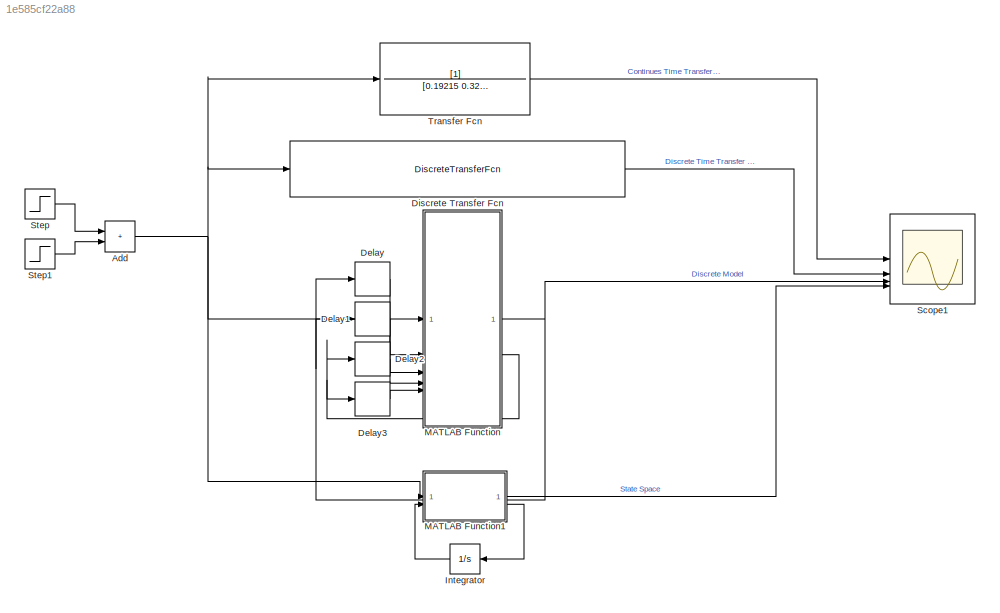
MODEL slx_1e585cf22a88
KIND model
CONFIG AbsTol = auto
CONFIG EnableMultiTasking = off
CONFIG FixedStep = 0.0001
CONFIG MaxStep = auto
CONFIG MinStep = auto
CONFIG RelTol = 1e-3
CONFIG SampleTimeConstraint = Unconstrained
CONFIG SolverName = FixedStepAuto
CONFIG StartTime = 0.0
CONFIG StopTime = 10.0
BLOCK [Sum] Add
  IconShape = rectangular
BLOCK [Delay] Delay
  DelayLength = 1
  InputPortMap = u0
BLOCK [Delay] Delay1
  InputPortMap = u0
BLOCK [Delay] Delay2
  DelayLength = 1
  InputPortMap = u0
BLOCK [Delay] Delay3
  InputPortMap = u0
BLOCK [DiscreteTransferFcn] Discrete Transfer Fcn
  Denominator = [1,-1.99983224915492,0.999832249154917]
  InputPortMap = u0
  Numerator = [0,2.60198824019360e-08,2.60184273681516e-08]
BLOCK [Integrator] Integrator
  InitialCondition = [0;0]
  NameLocation = top
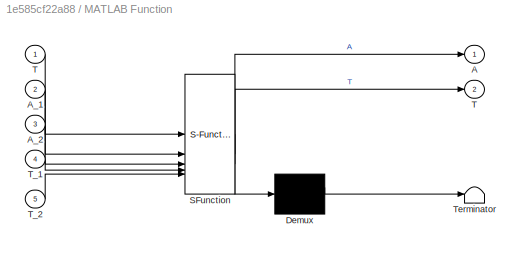
BLOCK [SubSystem] MATLAB Function
  ErrorFcn = Stateflow.Translate.translate
  LibrarySourceBlock = simulink/User-Defined\nFunctions/MATLAB Function
  PermitHierarchicalResolution = ExplicitOnly
  SFBlockType = MATLAB Function
  TreatAsAtomicUnit = on
BLOCK [Demux] MATLAB Function/ Demux 
  Outputs = 1
BLOCK [S-Function] MATLAB Function/ SFunction 
  EnableBusSupport = on
  FunctionName = sf_sfun
  PortCounts = [5 3]
  SFcnIsStateOwnerBlock = off
  SFunctionDeploymentMode = off
  Tag = Stateflow S-Function 2
BLOCK [Terminator] MATLAB Function/ Terminator 
BLOCK [Outport] MATLAB Function/A
BLOCK [Inport] MATLAB Function/A_1
  Port = 2
BLOCK [Inport] MATLAB Function/A_2
  Port = 3
BLOCK [Outport] MATLAB Function/T
  Port = 2
BLOCK [Inport] MATLAB Function/T 
BLOCK [Inport] MATLAB Function/T_1
  Port = 4
BLOCK [Inport] MATLAB Function/T_2
  Port = 5
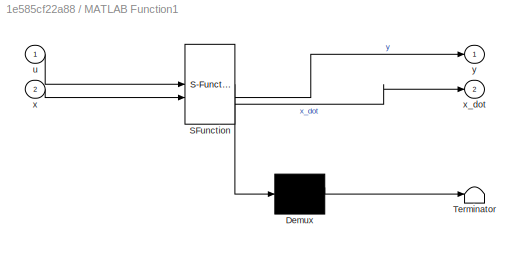
BLOCK [SubSystem] MATLAB Function1
  ErrorFcn = Stateflow.Translate.translate
  LibrarySourceBlock = simulink/User-Defined\nFunctions/MATLAB Function
  PermitHierarchicalResolution = ExplicitOnly
  SFBlockType = MATLAB Function
  TreatAsAtomicUnit = on
BLOCK [Demux] MATLAB Function1/ Demux 
  Outputs = 1
BLOCK [S-Function] MATLAB Function1/ SFunction 
  EnableBusSupport = on
  FunctionName = sf_sfun
  PortCounts = [2 3]
  SFcnIsStateOwnerBlock = off
  SFunctionDeploymentMode = off
  Tag = Stateflow S-Function 1
BLOCK [Terminator] MATLAB Function1/ Terminator 
BLOCK [Inport] MATLAB Function1/u
BLOCK [Inport] MATLAB Function1/x
  Port = 2
BLOCK [Outport] MATLAB Function1/x_dot
  Port = 2
BLOCK [Outport] MATLAB Function1/y
BLOCK [Scope] Scope1
  Floating = off
  NumInputPorts = 4
  ScopeSpecificationString = Simulink.scopes.TimeScopeBlockCfg('CurrentConfiguration', extmgr.ConfigurationSet(extmgr.Configuration('Core','General UI',true,'FigureColor',[0.313725490196078 0.313725490196078 0.313725490196078]),extmgr.Configuration('Core','Source UI',true),extmgr.Configuration('Sources','WiredSimulink',true,'DataLoggingVariableName','ScopeData1'),extmgr.Configuration('Visuals','Time Domain',true,'SerializedDi...<+1596ch>
BLOCK [Step] Step
  After = 10
  SampleTime = 0
  Time = 0
BLOCK [Step] Step1
  After = -10
  SampleTime = 0
  Time = 2
BLOCK [TransferFcn] Transfer Fcn
  Denominator = [0.19215 0.32236 0]
NET Add:1 -> Discrete Transfer Fcn:1, MATLAB Function1:1, MATLAB Function:1, Transfer Fcn:1
LINE Delay1:1 -> MATLAB Function:3
LINE Delay2:1 -> MATLAB Function:4
LINE Delay3:1 -> MATLAB Function:5
LINE Delay:1 -> MATLAB Function:2
LINE Discrete Transfer Fcn:1 -> Scope1:2
LINE Integrator:1 -> MATLAB Function1:2
LINE MATLAB Function1:1 -> Scope1:4
LINE MATLAB Function1:2 -> Integrator:1
NET MATLAB Function:1 -> Delay1:1, Delay:1, Scope1:3
NET MATLAB Function:2 -> Delay2:1, Delay3:1
LINE Step1:1 -> Add:2
LINE Step:1 -> Add:1
LINE Transfer Fcn:1 -> Scope1:1
note: NET lines group one-source signal fan-out (src -> all destinations, sorted); 1:1 wires keep LINE
CHART MATLAB Function1 states=1 transitions=1
  STATE_LABEL 'eML_blk_kernel()'
  STATE_LABEL 'SCRIPT:\nfunction [y, x_dot] = fcn(u, x)\n\nI = 0.19215;\nc = 0.32236;\nk = 0;\n\nA = [  0     1  ;\n     -k/I  -c/I];\nB = [ 0  ;\n     1/I];\nC = [1 0];\nD = 0;\n\nx_dot = A * x + B * u;\ny = C * x + D * u;\n\n'
CHART MATLAB Function states=1 transitions=1
  STATE_LABEL 'eML_blk_kernel()'
  STATE_LABEL 'SCRIPT:\nfunction [A, T] = fcn(T, A_1, A_2, T_1, T_2)\n\nA = (2.601988240193600e-08) * T_1 + (2.601842736815161e-08) * T_2...\n     + (1.999832249154917) * A_1 - (0.999832249154917) * A_2;\n'
CHART  states=0 transitions=0
CHART  states=0 transitions=0
